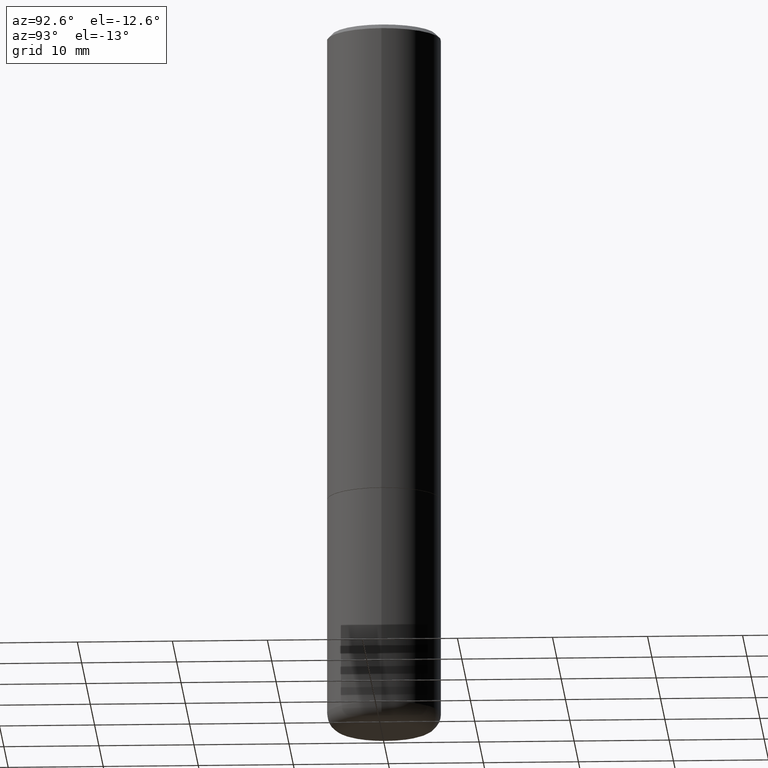
[diagram: clean part render]
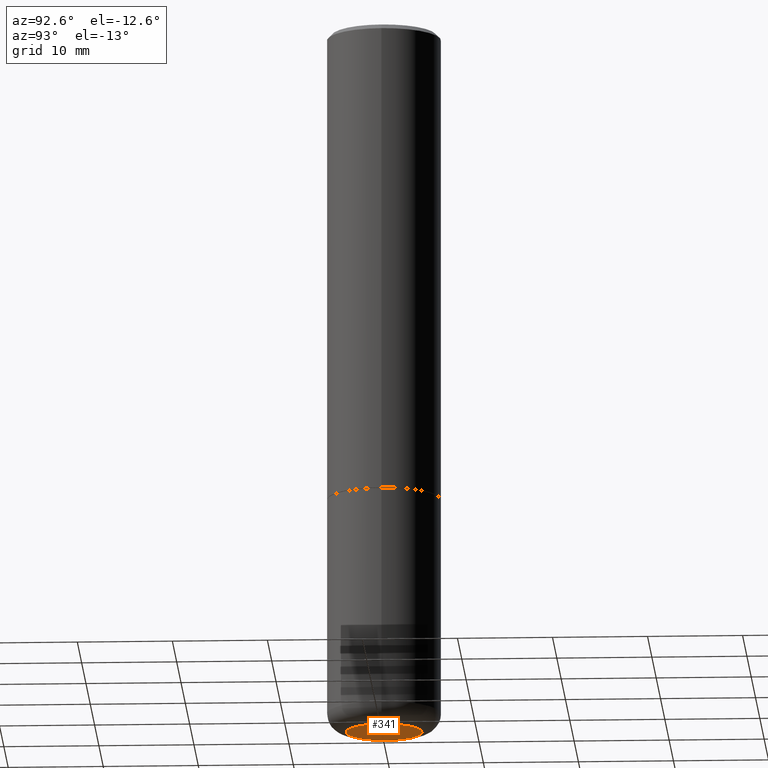
[diagram: same view with one face highlighted and labeled with its STEP entity id]
A machine part, auxiliary view. The second image highlights one B-rep face of the part: STEP entity #341.
In plain terms, the highlighted planar face has unit normal (0, -0, -1).
Its self-contained STEP definition (entity closure, byte-faithful):
#18 = DIRECTION ( 'NONE',  ( 2.438088387897960049E-29, -3.491481338843145188E-15, -1.000000000000000000 ) ) ;
#43 = PLANE ( 'NONE',  #248 ) ;
#99 = DIRECTION ( 'NONE',  ( 1.000000000000000000, -6.982962677686261977E-15, 0.000000000000000000 ) ) ;
#104 = ORIENTED_EDGE ( 'NONE', *, *, #163, .F. ) ;
#110 = EDGE_CURVE ( 'NONE', #303, #153, #260, .T. ) ;
#141 = EDGE_LOOP ( 'NONE', ( #349, #104 ) ) ;
#153 = VERTEX_POINT ( 'NONE', #333 ) ;
#163 = EDGE_CURVE ( 'NONE', #153, #303, #166, .T. ) ;
#166 = CIRCLE ( 'NONE', #245, 0.1575000000000000011 ) ;
#172 = CARTESIAN_POINT ( 'NONE',  ( 7.220980290903470182E-29, -1.030964609733603853E-14, -2.952799999999999869 ) ) ;
#180 = AXIS2_PLACEMENT_3D ( 'NONE', #346, #283, #394 ) ;
#241 = DIRECTION ( 'NONE',  ( -1.000000000000000000, 6.982962677686265922E-15, -4.876176775795935793E-29 ) ) ;
#245 = AXIS2_PLACEMENT_3D ( 'NONE', #352, #354, #99 ) ;
#248 = AXIS2_PLACEMENT_3D ( 'NONE', #172, #18, #241 ) ;
#260 = CIRCLE ( 'NONE', #180, 0.1575000000000000011 ) ;
#283 = DIRECTION ( 'NONE',  ( -2.445468806185136597E-29, 3.491481338843145583E-15, 1.000000000000000000 ) ) ;
#301 = FACE_OUTER_BOUND ( 'NONE', #141, .T. ) ;
#303 = VERTEX_POINT ( 'NONE', #405 ) ;
#333 = CARTESIAN_POINT ( 'NONE',  ( -0.1575000000000000011, -8.773552931308804860E-15, -2.952799999999999869 ) ) ;
#341 = ADVANCED_FACE ( 'NONE', ( #301 ), #43, .T. ) ;
#346 = CARTESIAN_POINT ( 'NONE',  ( 7.220980290903470182E-29, -1.030964609733603853E-14, -2.952799999999999869 ) ) ;
#349 = ORIENTED_EDGE ( 'NONE', *, *, #110, .F. ) ;
#352 = CARTESIAN_POINT ( 'NONE',  ( 7.220980290903470182E-29, -1.030964609733603853E-14, -2.952799999999999869 ) ) ;
#354 = DIRECTION ( 'NONE',  ( -2.445468806185136597E-29, 3.491481338843145583E-15, 1.000000000000000000 ) ) ;
#394 = DIRECTION ( 'NONE',  ( 1.000000000000000000, -6.982962677686261977E-15, 0.000000000000000000 ) ) ;
#405 = CARTESIAN_POINT ( 'NONE',  ( 0.1575000000000000011, -1.140946271907162522E-14, -2.952799999999999869 ) ) ;